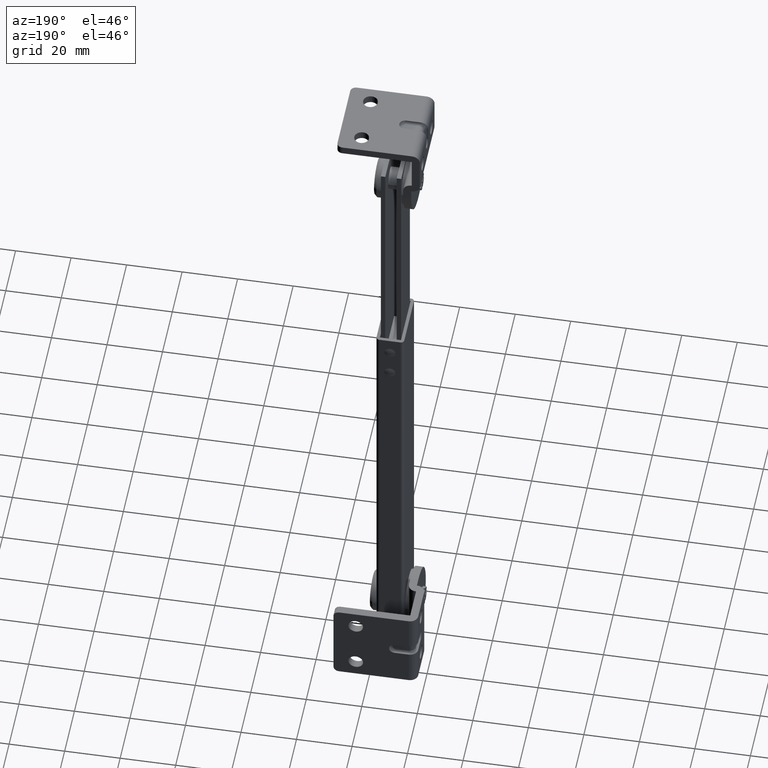
[diagram: clean part render]
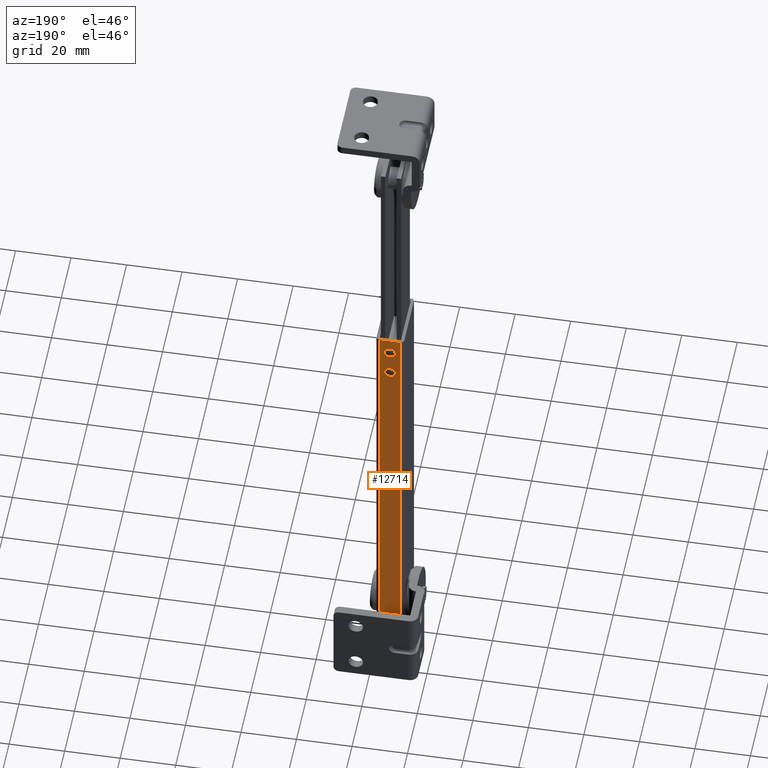
[diagram: same view with one face highlighted and labeled with its STEP entity id]
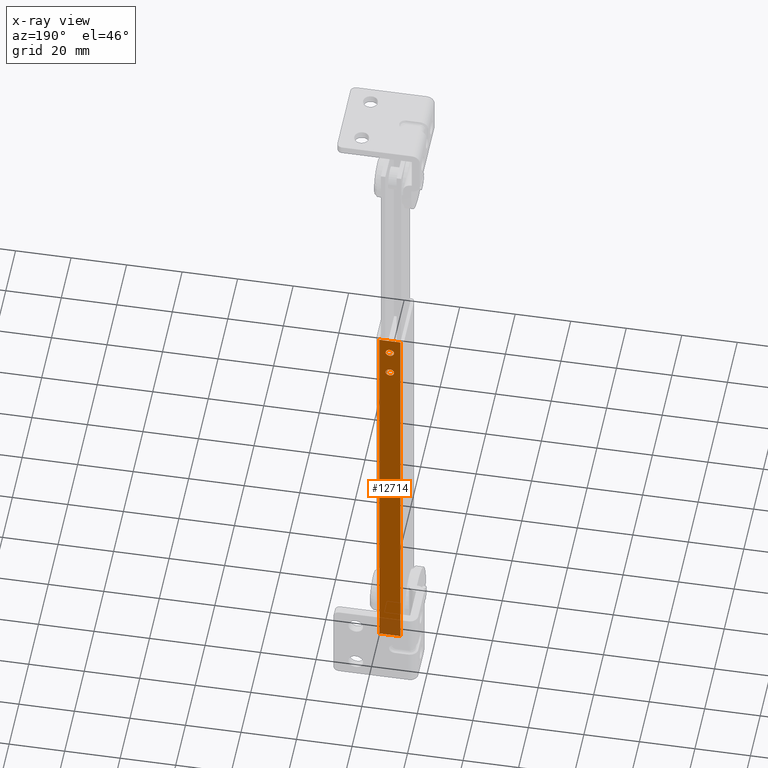
[diagram: x-ray of the same camera — body ghosted, the highlighted face saturated]
A machine part, auxiliary view. The second image highlights one B-rep face of the part: STEP entity #12714.
The next image is the same camera in x-ray: the body ghosted, the highlighted face saturated — about 6% of this face is hidden behind the body in this view.
In plain terms, the highlighted face is a freeform B-spline surface patch.
Its self-contained STEP definition (entity closure, byte-faithful):
#11574=CARTESIAN_POINT('',(-6.495375999980162,11.0,133.117688651463710));
#11575=VERTEX_POINT('',#11574);
#11581=CARTESIAN_POINT('',(-5.0,11.0,134.500000000000000));
#11582=VERTEX_POINT('',#11581);
#11583=CARTESIAN_POINT('',(-5.0,11.0,134.500000000000000));
#11584=CARTESIAN_POINT('',(-6.386585722843801,10.999999999999998,134.500000000000000));
#11585=CARTESIAN_POINT('',(-6.495375999980162,10.999999999999996,133.117688651463620));
#11593=(BOUNDED_CURVE()B_SPLINE_CURVE(2,(#11583,#11584,#11585),.UNSPECIFIED.,.F.,.U.)B_SPLINE_CURVE_WITH_KNOTS((3,3),(0.0,0.236331298827961),.UNSPECIFIED.)CURVE()GEOMETRIC_REPRESENTATION_ITEM()RATIONAL_B_SPLINE_CURVE((1.0,0.723120660719659,0.969723352405323))REPRESENTATION_ITEM(''));
#11594=EDGE_CURVE('',#11582,#11575,#11593,.T.);
#11596=CARTESIAN_POINT('',(-3.504624000019837,11.0,132.882311348536400));
#11597=VERTEX_POINT('',#11596);
#11598=CARTESIAN_POINT('',(-3.504624000019838,11.000000000000002,132.882311348536320));
#11599=CARTESIAN_POINT('',(-3.500000000000000,11.000000000000002,132.941064831580060));
#11600=CARTESIAN_POINT('',(-3.500000000000000,11.0,133.0));
#11601=CARTESIAN_POINT('',(-3.499999999999999,11.0,134.500000000000000));
#11602=CARTESIAN_POINT('',(-5.0,11.0,134.500000000000000));
#11610=(BOUNDED_CURVE()B_SPLINE_CURVE(2,(#11598,#11599,#11600,#11601,#11602),.UNSPECIFIED.,.F.,.U.)B_SPLINE_CURVE_WITH_KNOTS((3,2,3),(0.736331298827963,0.750000000000000,1.0),.UNSPECIFIED.)CURVE()GEOMETRIC_REPRESENTATION_ITEM()RATIONAL_B_SPLINE_CURVE((0.969723352405328,0.983986120466892,1.0,0.707106781186548,1.0))REPRESENTATION_ITEM(''));
#11611=EDGE_CURVE('',#11597,#11582,#11610,.T.);
#11687=CARTESIAN_POINT('',(-5.0,11.0,131.500000000000000));
#11688=VERTEX_POINT('',#11687);
#11689=CARTESIAN_POINT('',(-5.0,11.0,131.500000000000000));
#11690=CARTESIAN_POINT('',(-3.613414277156183,11.0,131.500000000000000));
#11691=CARTESIAN_POINT('',(-3.504624000019837,10.999999999999996,132.882311348536350));
#11699=(BOUNDED_CURVE()B_SPLINE_CURVE(2,(#11689,#11690,#11691),.UNSPECIFIED.,.F.,.U.)B_SPLINE_CURVE_WITH_KNOTS((3,3),(0.500000000000000,0.736331298827963),.UNSPECIFIED.)CURVE()GEOMETRIC_REPRESENTATION_ITEM()RATIONAL_B_SPLINE_CURVE((1.0,0.723120660719656,0.969723352405328))REPRESENTATION_ITEM(''));
#11700=EDGE_CURVE('',#11688,#11597,#11699,.T.);
#11702=CARTESIAN_POINT('',(-6.495375999980162,10.999999999999996,133.117688651463620));
#11703=CARTESIAN_POINT('',(-6.500000000000001,11.000000000000002,133.058935168419910));
#11704=CARTESIAN_POINT('',(-6.500000000000001,11.0,133.0));
#11705=CARTESIAN_POINT('',(-6.500000000000003,11.0,131.500000000000000));
#11706=CARTESIAN_POINT('',(-5.0,11.0,131.500000000000000));
#11714=(BOUNDED_CURVE()B_SPLINE_CURVE(2,(#11702,#11703,#11704,#11705,#11706),.UNSPECIFIED.,.F.,.U.)B_SPLINE_CURVE_WITH_KNOTS((3,2,3),(0.236331298827961,0.250000000000000,0.500000000000000),.UNSPECIFIED.)CURVE()GEOMETRIC_REPRESENTATION_ITEM()RATIONAL_B_SPLINE_CURVE((0.969723352405323,0.983986120466889,1.0,0.707106781186548,1.0))REPRESENTATION_ITEM(''));
#11715=EDGE_CURVE('',#11575,#11688,#11714,.T.);
#11756=CARTESIAN_POINT('',(-6.495375999980164,11.0,123.117688651463600));
#11757=VERTEX_POINT('',#11756);
#11763=CARTESIAN_POINT('',(-5.0,11.0,124.500000000000000));
#11764=VERTEX_POINT('',#11763);
#11765=CARTESIAN_POINT('',(-5.0,11.0,124.500000000000000));
#11766=CARTESIAN_POINT('',(-6.386585722843813,11.000000000000002,124.499999999999990));
#11767=CARTESIAN_POINT('',(-6.495375999980164,11.000000000000002,123.117688651463640));
#11775=(BOUNDED_CURVE()B_SPLINE_CURVE(2,(#11765,#11766,#11767),.UNSPECIFIED.,.F.,.U.)B_SPLINE_CURVE_WITH_KNOTS((3,3),(0.0,0.236331298827962),.UNSPECIFIED.)CURVE()GEOMETRIC_REPRESENTATION_ITEM()RATIONAL_B_SPLINE_CURVE((1.0,0.723120660719657,0.969723352405326))REPRESENTATION_ITEM(''));
#11776=EDGE_CURVE('',#11764,#11757,#11775,.T.);
#11778=CARTESIAN_POINT('',(-3.504624000019838,11.0,122.882311348536400));
#11779=VERTEX_POINT('',#11778);
#11780=CARTESIAN_POINT('',(-3.504624000019838,11.0,122.882311348536400));
#11781=CARTESIAN_POINT('',(-3.500000000000000,11.0,122.941064831580080));
#11782=CARTESIAN_POINT('',(-3.500000000000000,11.0,123.0));
#11783=CARTESIAN_POINT('',(-3.499999999999999,11.0,124.499999999999990));
#11784=CARTESIAN_POINT('',(-5.0,11.0,124.500000000000000));
#11792=(BOUNDED_CURVE()B_SPLINE_CURVE(2,(#11780,#11781,#11782,#11783,#11784),.UNSPECIFIED.,.F.,.U.)B_SPLINE_CURVE_WITH_KNOTS((3,2,3),(0.736331298827962,0.750000000000000,1.0),.UNSPECIFIED.)CURVE()GEOMETRIC_REPRESENTATION_ITEM()RATIONAL_B_SPLINE_CURVE((0.969723352405326,0.983986120466891,1.0,0.707106781186548,1.0))REPRESENTATION_ITEM(''));
#11793=EDGE_CURVE('',#11779,#11764,#11792,.T.);
#11869=CARTESIAN_POINT('',(-5.0,11.0,121.500000000000000));
#11870=VERTEX_POINT('',#11869);
#11871=CARTESIAN_POINT('',(-5.0,11.0,121.500000000000000));
#11872=CARTESIAN_POINT('',(-3.613414277156183,11.0,121.500000000000010));
#11873=CARTESIAN_POINT('',(-3.504624000019838,10.999999999999996,122.882311348536330));
#11881=(BOUNDED_CURVE()B_SPLINE_CURVE(2,(#11871,#11872,#11873),.UNSPECIFIED.,.F.,.U.)B_SPLINE_CURVE_WITH_KNOTS((3,3),(0.500000000000000,0.736331298827963),.UNSPECIFIED.)CURVE()GEOMETRIC_REPRESENTATION_ITEM()RATIONAL_B_SPLINE_CURVE((1.0,0.723120660719656,0.969723352405328))REPRESENTATION_ITEM(''));
#11882=EDGE_CURVE('',#11870,#11779,#11881,.T.);
#11884=CARTESIAN_POINT('',(-6.495375999980164,11.000000000000004,123.117688651463670));
#11885=CARTESIAN_POINT('',(-6.500000000000001,11.000000000000002,123.058935168419880));
#11886=CARTESIAN_POINT('',(-6.500000000000001,11.0,123.0));
#11887=CARTESIAN_POINT('',(-6.500000000000003,11.0,121.500000000000010));
#11888=CARTESIAN_POINT('',(-5.0,11.0,121.500000000000000));
#11896=(BOUNDED_CURVE()B_SPLINE_CURVE(2,(#11884,#11885,#11886,#11887,#11888),.UNSPECIFIED.,.F.,.U.)B_SPLINE_CURVE_WITH_KNOTS((3,2,3),(0.236331298827962,0.250000000000000,0.500000000000000),.UNSPECIFIED.)CURVE()GEOMETRIC_REPRESENTATION_ITEM()RATIONAL_B_SPLINE_CURVE((0.969723352405326,0.983986120466891,1.0,0.707106781186548,1.0))REPRESENTATION_ITEM(''));
#11897=EDGE_CURVE('',#11757,#11870,#11896,.T.);
#12275=CARTESIAN_POINT('',(-1.199997000000000,11.0,139.0));
#12276=VERTEX_POINT('',#12275);
#12290=CARTESIAN_POINT('',(-8.800003000000000,10.999999000000001,139.0));
#12291=VERTEX_POINT('',#12290);
#12292=CARTESIAN_POINT('',(-8.800003000000000,10.999999000000001,139.0));
#12293=CARTESIAN_POINT('',(-1.199997000000000,11.0,139.0));
#12294=QUASI_UNIFORM_CURVE('',1,(#12292,#12293),.UNSPECIFIED.,.F.,.U.);
#12295=EDGE_CURVE('',#12291,#12276,#12294,.T.);
#12401=CARTESIAN_POINT('',(-8.800003000000000,10.999999000000001,-11.0));
#12402=VERTEX_POINT('',#12401);
#12416=CARTESIAN_POINT('',(-1.199997000000000,11.0,-11.0));
#12417=VERTEX_POINT('',#12416);
#12418=CARTESIAN_POINT('',(-8.800003000000000,10.999999000000001,-11.0));
#12419=CARTESIAN_POINT('',(-1.199997000000000,11.0,-11.0));
#12420=QUASI_UNIFORM_CURVE('',1,(#12418,#12419),.UNSPECIFIED.,.F.,.U.);
#12421=EDGE_CURVE('',#12402,#12417,#12420,.T.);
#12541=CARTESIAN_POINT('',(-1.199997000000000,11.0,-11.0));
#12542=CARTESIAN_POINT('',(-1.199997000000000,11.0,139.0));
#12543=QUASI_UNIFORM_CURVE('',1,(#12541,#12542),.UNSPECIFIED.,.F.,.U.);
#12544=EDGE_CURVE('',#12417,#12276,#12543,.T.);
#12564=CARTESIAN_POINT('',(-8.800003000000000,10.999999000000001,-11.0));
#12565=CARTESIAN_POINT('',(-8.800003000000000,10.999999000000001,139.0));
#12566=QUASI_UNIFORM_CURVE('',1,(#12564,#12565),.UNSPECIFIED.,.F.,.U.);
#12567=EDGE_CURVE('',#12402,#12291,#12566,.T.);
#12691=CARTESIAN_POINT('',(-9.179623356313133,11.0,146.492499709270900));
#12692=CARTESIAN_POINT('',(-9.179623356313133,11.0,-18.492503732584421));
#12693=CARTESIAN_POINT('',(-0.820376507788170,11.0,146.492499709270900));
#12694=CARTESIAN_POINT('',(-0.820376507788170,11.0,-18.492503732584421));
#12695=B_SPLINE_SURFACE_WITH_KNOTS('',1,1,((#12691,#12693),(#12692,#12694)),.UNSPECIFIED.,.F.,.F.,.U.,(2,2),(2,2),(0.0,164.985003441855300),(0.0,8.359246848524963),.UNSPECIFIED.);
#12696=ORIENTED_EDGE('',*,*,#12295,.T.);
#12697=ORIENTED_EDGE('',*,*,#12544,.F.);
#12698=ORIENTED_EDGE('',*,*,#12421,.F.);
#12699=ORIENTED_EDGE('',*,*,#12567,.T.);
#12700=EDGE_LOOP('',(#12696,#12697,#12698,#12699));
#12701=FACE_OUTER_BOUND('',#12700,.T.);
#12702=ORIENTED_EDGE('',*,*,#11882,.T.);
#12703=ORIENTED_EDGE('',*,*,#11793,.T.);
#12704=ORIENTED_EDGE('',*,*,#11776,.T.);
#12705=ORIENTED_EDGE('',*,*,#11897,.T.);
#12706=EDGE_LOOP('',(#12702,#12703,#12704,#12705));
#12707=FACE_BOUND('',#12706,.T.);
#12708=ORIENTED_EDGE('',*,*,#11700,.T.);
#12709=ORIENTED_EDGE('',*,*,#11611,.T.);
#12710=ORIENTED_EDGE('',*,*,#11594,.T.);
#12711=ORIENTED_EDGE('',*,*,#11715,.T.);
#12712=EDGE_LOOP('',(#12708,#12709,#12710,#12711));
#12713=FACE_BOUND('',#12712,.T.);
#12714=ADVANCED_FACE('',(#12701,#12707,#12713),#12695,.F.);